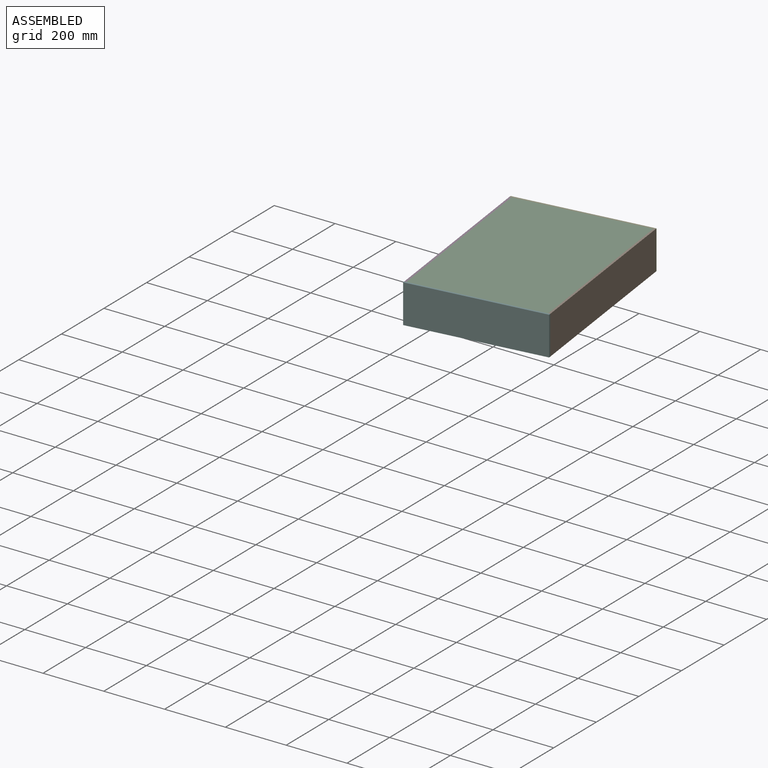
[diagram: assembled view]
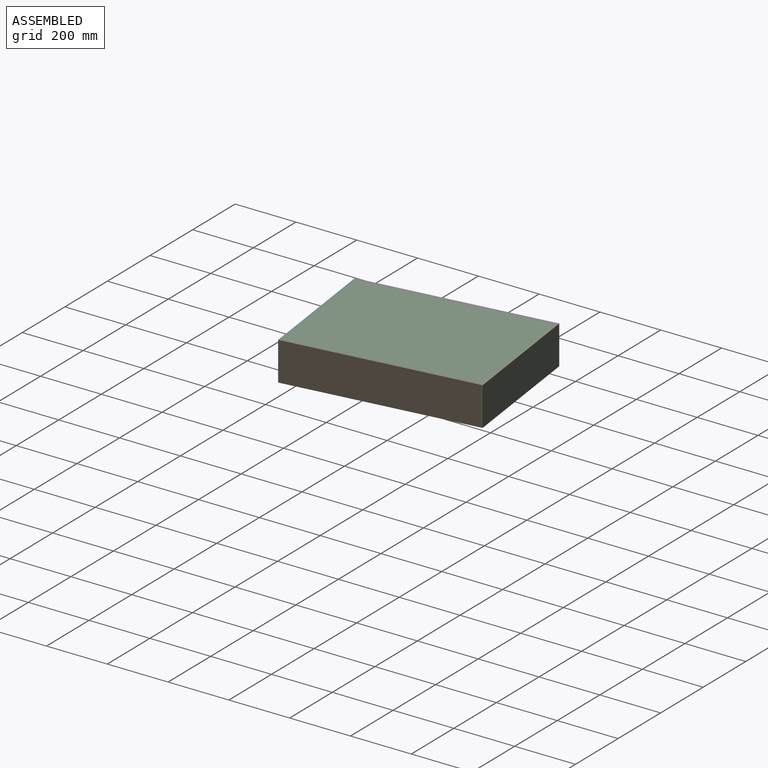
[diagram: assembled view, second angle]
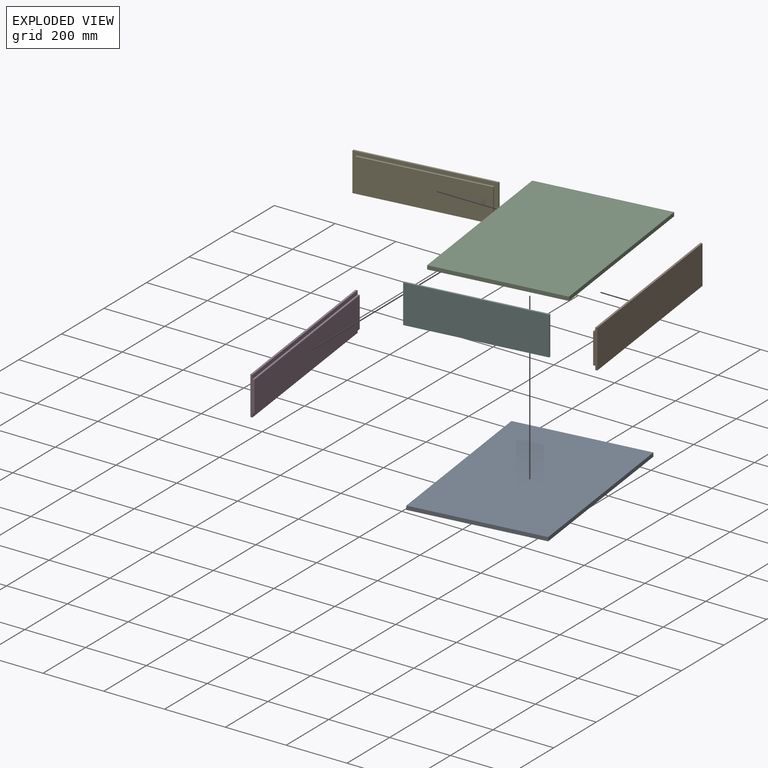
[diagram: exploded view]
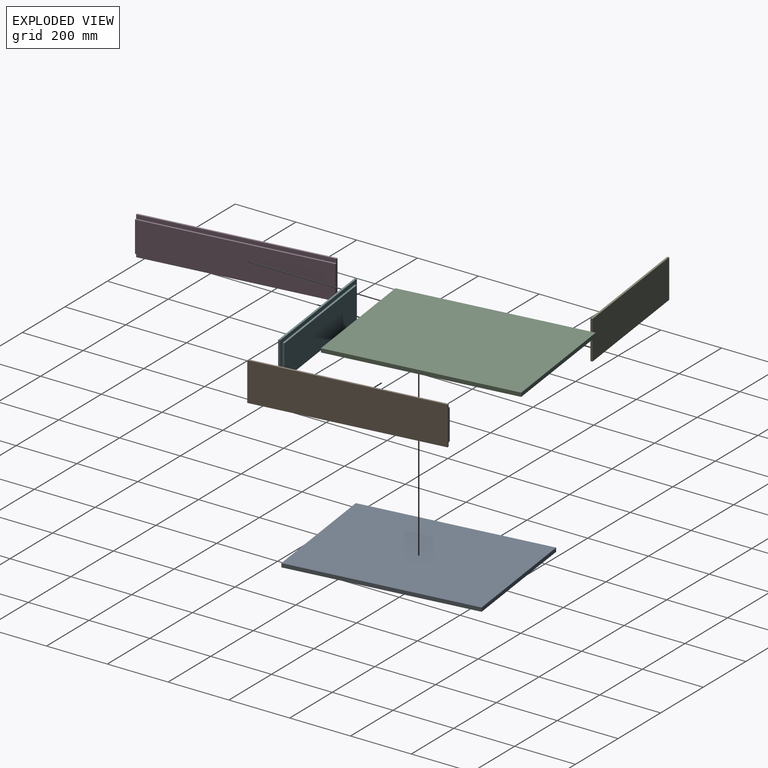
[diagram: exploded view, second angle]
ASSEMBLY  parts=6 mates=16
PART A: 6 faces, bbox 609.6x431.8x12.7 mm
  f0: plane 609.6x12.7mm, normal (0,1,0), area 7741.9mm2, adj f1,f3,f4,f5
  f1: plane 431.8x12.7mm, normal (-1,0,0), area 5483.9mm2, adj f0,f2,f4,f5
  f2: plane 609.6x12.7mm, normal (0,-1,0), area 7741.9mm2, adj f1,f3,f4,f5
  f3: plane 431.8x12.7mm, normal (1,0,0), area 5483.9mm2, adj f0,f2,f4,f5
  f4: plane 609.6x431.8mm, normal (0,0,1), area 263225.3mm2, adj f0,f1,f2,f3
  f5: plane 609.6x431.8mm, normal (0,0,-1), area 263225.3mm2, adj f0,f1,f2,f3
PART B: 10 faces, bbox 12.7x609.6x127 mm
  f0: plane 127x12.7mm, normal (0,1,0), area 1451.6mm2, adj f1,f2,f4,f5,f6,f7,f8,f9
  f1: plane 609.6x101.6mm, normal (-1,0,0), area 61935.4mm2, adj f0,f3,f6,f8
  f2: plane 609.6x6.35mm, normal (0,0,1), area 3871mm2, adj f0,f3,f5,f9
  f3: plane 127x12.7mm, normal (0,-1,0), area 1451.6mm2, adj f1,f2,f4,f5,f6,f7,f8,f9
  f4: plane 609.6x6.35mm, normal (0,0,-1), area 3871mm2, adj f0,f3,f5,f7
  f5: plane 609.6x127mm, normal (1,0,0), area 77419.2mm2, adj f0,f2,f3,f4
  f6: plane 609.6x6.35mm, normal (0,0,-1), area 3871mm2, adj f0,f1,f3,f7
  f7: plane 609.6x12.7mm, normal (-1,0,0), area 7741.9mm2, adj f0,f3,f4,f6
  f8: plane 609.6x6.35mm, normal (0,0,1), area 3871mm2, adj f0,f1,f3,f9
  f9: plane 609.6x12.7mm, normal (-1,0,0), area 7741.9mm2, adj f0,f2,f3,f8
PART C: 6 faces, bbox 609.6x431.8x12.7 mm
  f0: plane 609.6x12.7mm, normal (0,1,0), area 7741.9mm2, adj f1,f3,f4,f5
  f1: plane 431.8x12.7mm, normal (-1,0,0), area 5483.9mm2, adj f0,f2,f4,f5
  f2: plane 609.6x12.7mm, normal (0,-1,0), area 7741.9mm2, adj f1,f3,f4,f5
  f3: plane 431.8x12.7mm, normal (1,0,0), area 5483.9mm2, adj f0,f2,f4,f5
  f4: plane 609.6x431.8mm, normal (0,0,1), area 263225.3mm2, adj f0,f1,f2,f3
  f5: plane 609.6x431.8mm, normal (0,0,-1), area 263225.3mm2, adj f0,f1,f2,f3
PART D: same geometry as B
PART E: 11 faces, bbox 12.7x444.5x127 mm
  f0: plane 444.5x6.35mm, normal (0,0,1), area 2822.6mm2, adj f1,f3,f4,f9
  f1: plane 127x6.35mm, normal (0,-1,0), area 806.5mm2, adj f0,f2,f4,f9
  f2: plane 444.5x6.35mm, normal (0,0,-1), area 2822.6mm2, adj f1,f3,f4,f9
  f3: plane 127x6.35mm, normal (0,1,0), area 806.5mm2, adj f0,f2,f4,f9
  f4: plane 444.5x127mm, normal (1,0,0), area 56451.5mm2, adj f0,f1,f2,f3
  f5: plane 101.6x6.35mm, normal (0,-1,0), area 645.2mm2, adj f6,f8,f9,f10
  f6: plane 419.1x6.35mm, normal (0,0,1), area 2661.3mm2, adj f5,f7,f9,f10
  f7: plane 101.6x6.35mm, normal (0,1,0), area 645.2mm2, adj f6,f8,f9,f10
  f8: plane 419.1x6.35mm, normal (0,0,-1), area 2661.3mm2, adj f5,f7,f9,f10
  f9: plane 444.5x127mm, normal (-1,0,0), area 13870.9mm2, adj f0,f1,f2,f3,f5,f6,f7,f8
  f10: plane 419.1x101.6mm, normal (-1,0,0), area 42580.6mm2, adj f5,f6,f7,f8
PART F: same geometry as E
PLACE A rot(axis=(0,0,1),97.3deg) t=(-405.63,-503.13,-359.64)mm
PLACE B rot(axis=(0,0,1),7.3deg) t=(-166.31,-684.66,-300.53)mm
PLACE C rot(axis=(0,0,1),97.3deg) t=(-233.37,-649.83,-245.34)mm
PLACE D rot(axis=(0,0,-1),172.7deg) t=(-641.66,-272.13,-300.53)mm
PLACE E rot(axis=(-0.66,-0.75,0),180deg) t=(-592.9,-201.7,-291.75)mm
PLACE F rot(axis=(0,0,-1),82.7deg) t=(-517.08,-793.77,-300.53)mm
MATE planar D.f0 <-> F.f9  axis (0.13,-0.99,0) through (-579.77,-808.2,-296.14)mm
MATE planar F.f8 <-> A.f4  axis (0,0,-1) through (-365.67,-777.58,-346.94)mm
MATE planar B.f6 <-> A.f4  axis (0,0,-1) through (-192.98,-451.38,-346.94)mm
MATE planar E.f7 <-> B.f1  axis (0.99,0.13,0) through (-234.44,-152.6,-296.14)mm
MATE planar F.f9 <-> A.f1  axis (-0.13,0.99,0) through (-365.27,-780.73,-296.14)mm
MATE planar F.f9 <-> B.f3  axis (-0.13,0.99,0) through (-365.27,-780.73,-296.14)mm
MATE planar B.f3 <-> F.f9  axis (0.13,-0.99,0) through (-150.76,-753.26,-296.14)mm
MATE planar B.f1 <-> F.f7  axis (-0.99,-0.13,0) through (-196.13,-451.78,-296.14)mm
MATE planar D.f7 <-> A.f0  axis (0.99,0.13,0) through (-618.13,-505.82,-353.29)mm
MATE planar B.f9 <-> C.f2  axis (-0.99,-0.13,0) through (-189.83,-450.97,-238.99)mm
MATE planar E.f9 <-> B.f0  axis (0.13,-0.99,0) through (-442.7,-176.06,-296.14)mm
MATE planar D.f6 <-> A.f4  axis (0,0,-1) through (-614.98,-505.42,-346.94)mm
MATE planar E.f6 <-> A.f4  axis (0,0,-1) through (-442.3,-179.21,-346.94)mm
MATE planar F.f9 <-> C.f1  axis (-0.13,0.99,0) through (-365.27,-780.73,-296.14)mm
MATE planar E.f5 <-> D.f1  axis (-0.99,-0.13,0) through (-650.15,-205.83,-296.14)mm
MATE planar E.f8 <-> C.f5  axis (0,0,1) through (-442.3,-179.21,-245.34)mm
